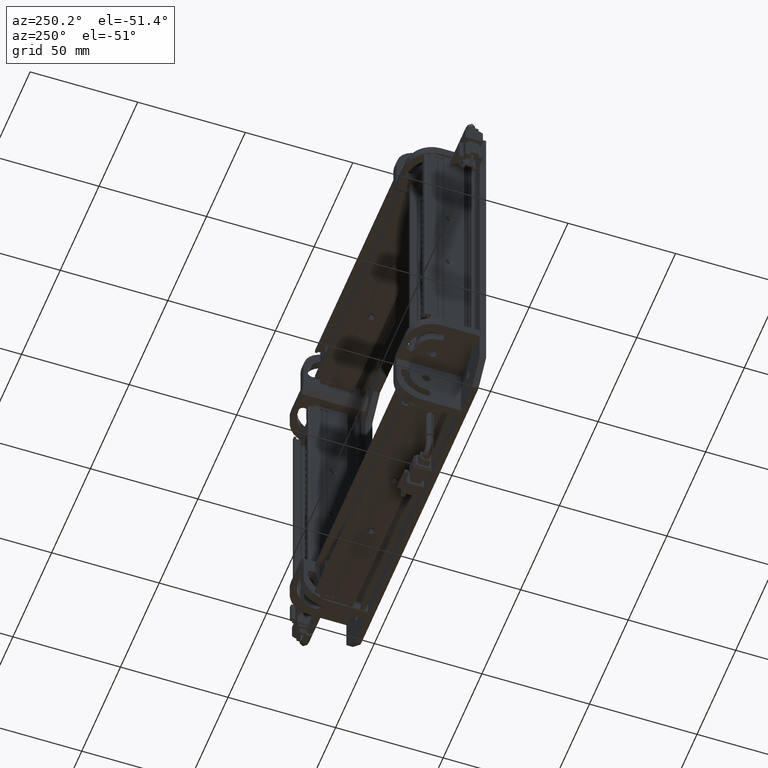
[diagram: clean part render]
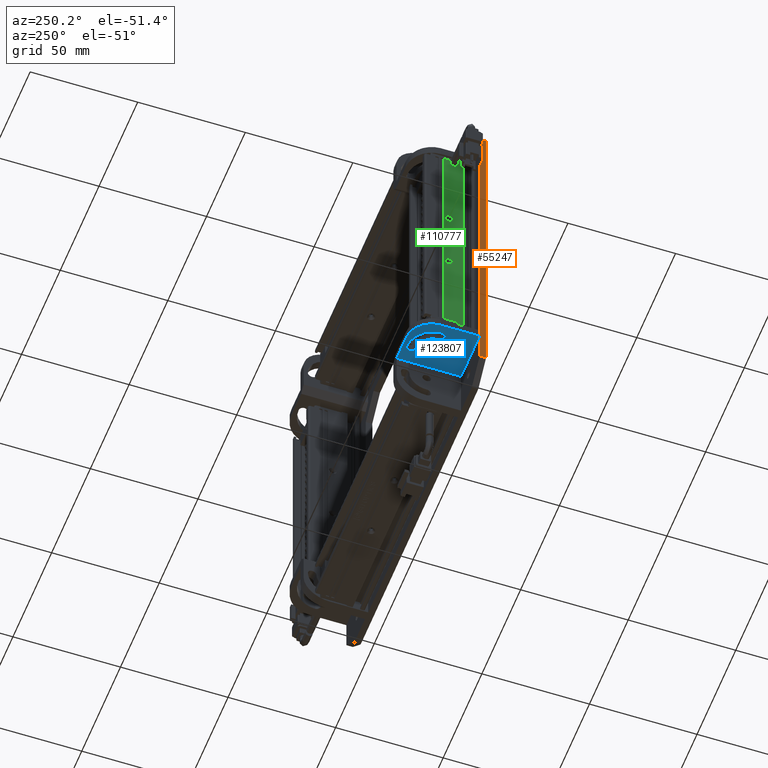
[diagram: same view with three faces highlighted in distinct colors, each labeled with its STEP entity id]
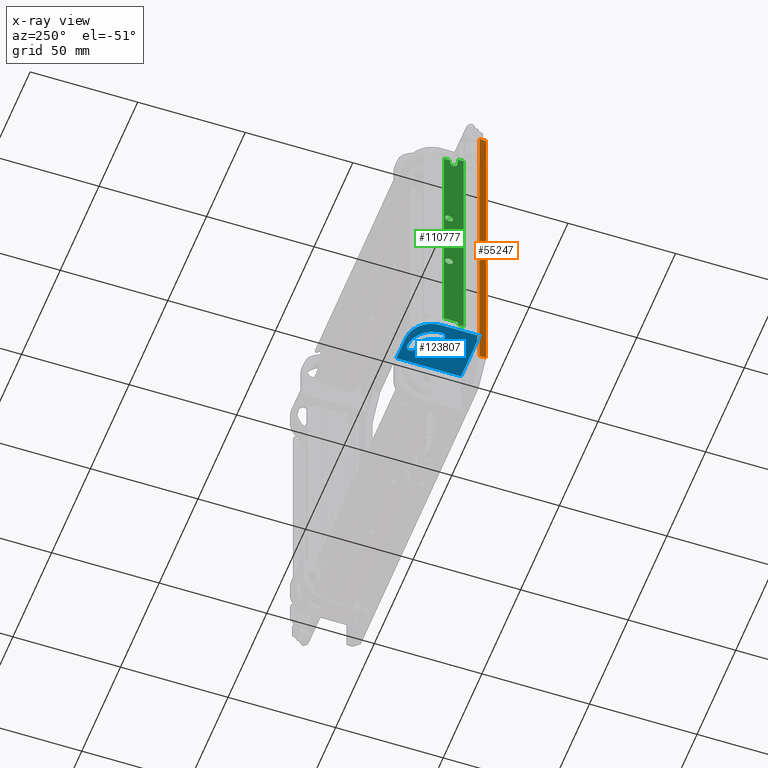
[diagram: x-ray of the same camera — body ghosted, the three highlighted faces saturated]
A machine part, auxiliary view with three faces highlighted in distinct colors.
The next image is the same camera in x-ray (body ghosted, the three faces saturated) — at least one of them is partly hidden behind the body in this view.
Their STEP definitions:

[orange] entity #55247 — the highlighted planar face has unit normal (1, -0, 0).
#13870 = DIRECTION ( 'NONE',  ( 7.885175750095784300E-018, -4.377151835486122500E-034, -1.000000000000000000 ) ) ;
#15444 = VECTOR ( 'NONE', #63214, 1000.000000000000000 ) ;
#19792 = ORIENTED_EDGE ( 'NONE', *, *, #22503, .T. ) ;
#22503 = EDGE_CURVE ( 'NONE', #28278, #85719, #25819, .T. ) ;
#25340 = AXIS2_PLACEMENT_3D ( 'NONE', #108759, #46033, #119266 ) ;
#25819 = LINE ( 'NONE', #133526, #78243 ) ;
#27652 = CARTESIAN_POINT ( 'NONE',  ( -86.00000000000000000, 4.773959005888153400E-015, -75.99999999999992900 ) ) ;
#28232 = ORIENTED_EDGE ( 'NONE', *, *, #36640, .F. ) ;
#28278 = VERTEX_POINT ( 'NONE', #27652 ) ;
#29137 = DIRECTION ( 'NONE',  ( -5.551115123125761100E-017, -1.000000000000000000, 0.0000000000000000000 ) ) ;
#36640 = EDGE_CURVE ( 'NONE', #28278, #112288, #78579, .T. ) ;
#41939 = FACE_OUTER_BOUND ( 'NONE', #43766, .T. ) ;
#42476 = CARTESIAN_POINT ( 'NONE',  ( -86.00000000000000000, -2.999999999999995100, -75.99999999999994300 ) ) ;
#43766 = EDGE_LOOP ( 'NONE', ( #51791, #28232, #19792, #109355 ) ) ;
#46033 = DIRECTION ( 'NONE',  ( 1.000000000000000000, -5.551115123125761100E-017, 7.885175750095784300E-018 ) ) ;
#51791 = ORIENTED_EDGE ( 'NONE', *, *, #87847, .F. ) ;
#55247 = ADVANCED_FACE ( 'NONE', ( #41939 ), #118796, .F. ) ;
#60343 = CARTESIAN_POINT ( 'NONE',  ( -86.00000000000000000, 4.773959005888153400E-015, 75.99999999999997200 ) ) ;
#63214 = DIRECTION ( 'NONE',  ( -5.551115123125761100E-017, -1.000000000000000000, 0.0000000000000000000 ) ) ;
#66030 = EDGE_CURVE ( 'NONE', #115490, #85719, #80184, .T. ) ;
#74393 = LINE ( 'NONE', #94414, #15444 ) ;
#77080 = CARTESIAN_POINT ( 'NONE',  ( -86.00000000000001400, -2.999999999999995100, 75.99999999999998600 ) ) ;
#78243 = VECTOR ( 'NONE', #29137, 1000.000000000000000 ) ;
#78579 = LINE ( 'NONE', #113742, #130965 ) ;
#80184 = LINE ( 'NONE', #87082, #108006 ) ;
#82711 = DIRECTION ( 'NONE',  ( -7.885175750095784300E-018, 4.377151835486122500E-034, 1.000000000000000000 ) ) ;
#85719 = VERTEX_POINT ( 'NONE', #42476 ) ;
#87082 = CARTESIAN_POINT ( 'NONE',  ( -86.00000000000001400, -2.999999999999995100, 86.00000000000000000 ) ) ;
#87847 = EDGE_CURVE ( 'NONE', #112288, #115490, #74393, .T. ) ;
#94414 = CARTESIAN_POINT ( 'NONE',  ( -86.00000000000000000, -2.999999999999995100, 75.99999999999997200 ) ) ;
#108006 = VECTOR ( 'NONE', #13870, 1000.000000000000000 ) ;
#108759 = CARTESIAN_POINT ( 'NONE',  ( -86.00000000000000000, -2.999999999999995100, 86.00000000000000000 ) ) ;
#109355 = ORIENTED_EDGE ( 'NONE', *, *, #66030, .F. ) ;
#112288 = VERTEX_POINT ( 'NONE', #60343 ) ;
#113742 = CARTESIAN_POINT ( 'NONE',  ( -86.00000000000000000, 4.773959005888154200E-015, 86.00000000000000000 ) ) ;
#115490 = VERTEX_POINT ( 'NONE', #77080 ) ;
#118796 = PLANE ( 'NONE',  #25340 ) ;
#119266 = DIRECTION ( 'NONE',  ( -5.551115123125761100E-017, -1.000000000000000000, 0.0000000000000000000 ) ) ;
#130965 = VECTOR ( 'NONE', #82711, 1000.000000000000000 ) ;
#133526 = CARTESIAN_POINT ( 'NONE',  ( -86.00000000000000000, -2.999999999999995100, -75.99999999999991500 ) ) ;

[blue] entity #123807 — the highlighted planar face has unit normal (-0, 0, 1).
#223 = DIRECTION ( 'NONE',  ( -1.000000000000000000, -5.782411586589358600E-016, -1.734723475976807700E-015 ) ) ;
#1881 = DIRECTION ( 'NONE',  ( -1.988763751824157700E-015, 4.614045744573081000E-031, 1.000000000000000000 ) ) ;
#3083 = CIRCLE ( 'NONE', #64700, 12.00000000000001100 ) ;
#3560 = ORIENTED_EDGE ( 'NONE', *, *, #121077, .T. ) ;
#3734 = DIRECTION ( 'NONE',  ( 0.0000000000000000000, 1.000000000000000000, 0.0000000000000000000 ) ) ;
#4608 = VERTEX_POINT ( 'NONE', #5207 ) ;
#5207 = CARTESIAN_POINT ( 'NONE',  ( -69.99999999999968700, 18.00000000000003900, -61.99999999999995700 ) ) ;
#5238 = DIRECTION ( 'NONE',  ( 0.0000000000000000000, 1.000000000000000000, 0.0000000000000000000 ) ) ;
#6328 = CARTESIAN_POINT ( 'NONE',  ( -69.99999999999968700, 16.00000000000003200, -61.99999999999995700 ) ) ;
#7699 = CARTESIAN_POINT ( 'NONE',  ( -69.99999999999968700, 16.00000000000003200, -61.99999999999995700 ) ) ;
#9245 = DIRECTION ( 'NONE',  ( 0.0000000000000000000, 1.000000000000000000, 0.0000000000000000000 ) ) ;
#10146 = ORIENTED_EDGE ( 'NONE', *, *, #107440, .T. ) ;
#10955 = VERTEX_POINT ( 'NONE', #47929 ) ;
#14071 = CARTESIAN_POINT ( 'NONE',  ( -73.99999999999970200, 30.00000000000002800, -61.99999999999996400 ) ) ;
#16860 = DIRECTION ( 'NONE',  ( 0.0000000000000000000, 1.000000000000000000, 0.0000000000000000000 ) ) ;
#18259 = DIRECTION ( 'NONE',  ( 0.0000000000000000000, 1.000000000000000000, 0.0000000000000000000 ) ) ;
#19120 = AXIS2_PLACEMENT_3D ( 'NONE', #130679, #67996, #5238 ) ;
#19460 = EDGE_CURVE ( 'NONE', #66187, #38149, #82183, .T. ) ;
#21419 = EDGE_CURVE ( 'NONE', #88585, #38149, #66143, .T. ) ;
#22024 = AXIS2_PLACEMENT_3D ( 'NONE', #22261, #95539, #32746 ) ;
#22172 = VERTEX_POINT ( 'NONE', #65809 ) ;
#22261 = CARTESIAN_POINT ( 'NONE',  ( -85.99999999999971600, 3.481205157530256500E-014, -61.99999999999998600 ) ) ;
#23805 = AXIS2_PLACEMENT_3D ( 'NONE', #125592, #62922, #223 ) ;
#24061 = FACE_OUTER_BOUND ( 'NONE', #36677, .T. ) ;
#24221 = EDGE_LOOP ( 'NONE', ( #3560, #57849 ) ) ;
#24368 = AXIS2_PLACEMENT_3D ( 'NONE', #6328, #79631, #16860 ) ;
#26505 = VECTOR ( 'NONE', #76782, 1000.000000000000000 ) ;
#29337 = DIRECTION ( 'NONE',  ( 1.000000000000000000, -2.320057241761838600E-016, 1.988763751824157700E-015 ) ) ;
#29677 = CARTESIAN_POINT ( 'NONE',  ( -61.99999999999968700, 2.924391419507414300E-014, -61.99999999999994300 ) ) ;
#32295 = PLANE ( 'NONE',  #22024 ) ;
#32746 = DIRECTION ( 'NONE',  ( 1.000000000000000000, -2.320057241761838600E-016, 1.844203462159423900E-015 ) ) ;
#33021 = ORIENTED_EDGE ( 'NONE', *, *, #21419, .F. ) ;
#33411 = CIRCLE ( 'NONE', #117870, 1.999999999999998200 ) ;
#35416 = VECTOR ( 'NONE', #82335, 1000.000000000000000 ) ;
#36677 = EDGE_LOOP ( 'NONE', ( #33021, #132903, #71425, #37527, #73241 ) ) ;
#37527 = ORIENTED_EDGE ( 'NONE', *, *, #118880, .F. ) ;
#38149 = VERTEX_POINT ( 'NONE', #124492 ) ;
#38481 = CARTESIAN_POINT ( 'NONE',  ( -61.99999999999968700, 2.924391419507414300E-014, -61.99999999999994300 ) ) ;
#40112 = EDGE_CURVE ( 'NONE', #48983, #119212, #3083, .T. ) ;
#40737 = CIRCLE ( 'NONE', #126158, 2.000000000000001800 ) ;
#42723 = CARTESIAN_POINT ( 'NONE',  ( -69.99999999999968700, 28.00000000000004300, -61.99999999999995700 ) ) ;
#47929 = CARTESIAN_POINT ( 'NONE',  ( -69.99999999999968700, 24.00000000000004600, -61.99999999999995700 ) ) ;
#48983 = VERTEX_POINT ( 'NONE', #42723 ) ;
#55248 = CIRCLE ( 'NONE', #24368, 2.000000000000008900 ) ;
#56113 = EDGE_CURVE ( 'NONE', #88585, #22172, #122938, .T. ) ;
#56221 = LINE ( 'NONE', #75066, #108648 ) ;
#57849 = ORIENTED_EDGE ( 'NONE', *, *, #83951, .T. ) ;
#61160 = CIRCLE ( 'NONE', #118300, 2.000000000000008900 ) ;
#62922 = DIRECTION ( 'NONE',  ( -1.875629612086540000E-015, 4.351568064384324800E-031, 1.000000000000000000 ) ) ;
#63298 = LINE ( 'NONE', #29677, #35416 ) ;
#64639 = CARTESIAN_POINT ( 'NONE',  ( -79.99999999999970200, 16.00000000000003200, -61.99999999999997900 ) ) ;
#64700 = AXIS2_PLACEMENT_3D ( 'NONE', #134714, #72005, #9245 ) ;
#65809 = CARTESIAN_POINT ( 'NONE',  ( -61.99999999999968000, 30.00000000000002800, -61.99999999999994300 ) ) ;
#66127 = EDGE_LOOP ( 'NONE', ( #111421, #86448, #110833, #10146 ) ) ;
#66143 = CIRCLE ( 'NONE', #23805, 11.99999999999999600 ) ;
#66187 = VERTEX_POINT ( 'NONE', #132362 ) ;
#66475 = DIRECTION ( 'NONE',  ( -1.988763751824157700E-015, 4.614045744573081000E-031, 1.000000000000000000 ) ) ;
#67024 = VERTEX_POINT ( 'NONE', #38481 ) ;
#67996 = DIRECTION ( 'NONE',  ( -1.988763751824157700E-015, 4.614045744573081000E-031, 1.000000000000000000 ) ) ;
#71425 = ORIENTED_EDGE ( 'NONE', *, *, #85635, .T. ) ;
#72005 = DIRECTION ( 'NONE',  ( -1.988763751824157700E-015, 4.614045744573081000E-031, 1.000000000000000000 ) ) ;
#73241 = ORIENTED_EDGE ( 'NONE', *, *, #19460, .T. ) ;
#75066 = CARTESIAN_POINT ( 'NONE',  ( -85.99999999999971600, 3.481205157530256500E-014, -61.99999999999998600 ) ) ;
#75195 = DIRECTION ( 'NONE',  ( 0.0000000000000000000, 1.000000000000000000, 0.0000000000000000000 ) ) ;
#76782 = DIRECTION ( 'NONE',  ( 2.320057241761838600E-016, 1.000000000000000000, -0.0000000000000000000 ) ) ;
#77947 = EDGE_CURVE ( 'NONE', #10955, #104651, #129194, .T. ) ;
#78059 = CARTESIAN_POINT ( 'NONE',  ( -77.99999999999970200, 16.00000000000003200, -61.99999999999997200 ) ) ;
#78390 = EDGE_CURVE ( 'NONE', #119212, #104651, #40737, .T. ) ;
#79631 = DIRECTION ( 'NONE',  ( -1.988763751824157700E-015, 4.614045744573081000E-031, 1.000000000000000000 ) ) ;
#79939 = CARTESIAN_POINT ( 'NONE',  ( -69.99999999999970200, 14.00000000000002300, -61.99999999999995700 ) ) ;
#81024 = DIRECTION ( 'NONE',  ( -1.988763751824157700E-015, 4.614045744573081000E-031, 1.000000000000000000 ) ) ;
#82183 = LINE ( 'NONE', #107938, #26505 ) ;
#82335 = DIRECTION ( 'NONE',  ( -2.320057241761838600E-016, -1.000000000000000000, -0.0000000000000000000 ) ) ;
#83951 = EDGE_CURVE ( 'NONE', #127547, #4608, #61160, .T. ) ;
#85580 = DIRECTION ( 'NONE',  ( 1.000000000000000000, -2.320057241761838600E-016, 1.988763751824157700E-015 ) ) ;
#85635 = EDGE_CURVE ( 'NONE', #22172, #67024, #63298, .T. ) ;
#86448 = ORIENTED_EDGE ( 'NONE', *, *, #78390, .T. ) ;
#88585 = VERTEX_POINT ( 'NONE', #14071 ) ;
#91889 = VECTOR ( 'NONE', #29337, 1000.000000000000000 ) ;
#95539 = DIRECTION ( 'NONE',  ( -1.844203462159423900E-015, 4.278657597665226700E-031, 1.000000000000000000 ) ) ;
#102583 = CARTESIAN_POINT ( 'NONE',  ( -85.99999999999971600, 30.00000000000003200, -61.99999999999999300 ) ) ;
#104651 = VERTEX_POINT ( 'NONE', #78059 ) ;
#107440 = EDGE_CURVE ( 'NONE', #10955, #48983, #33411, .T. ) ;
#107600 = FACE_BOUND ( 'NONE', #66127, .T. ) ;
#107938 = CARTESIAN_POINT ( 'NONE',  ( -85.99999999999971600, 30.00000000000003200, -61.99999999999998600 ) ) ;
#108648 = VECTOR ( 'NONE', #85580, 1000.000000000000000 ) ;
#110833 = ORIENTED_EDGE ( 'NONE', *, *, #77947, .F. ) ;
#111421 = ORIENTED_EDGE ( 'NONE', *, *, #40112, .T. ) ;
#117103 = CARTESIAN_POINT ( 'NONE',  ( -81.99999999999970200, 16.00000000000003200, -61.99999999999998600 ) ) ;
#117870 = AXIS2_PLACEMENT_3D ( 'NONE', #129150, #66475, #3734 ) ;
#118300 = AXIS2_PLACEMENT_3D ( 'NONE', #7699, #81024, #18259 ) ;
#118880 = EDGE_CURVE ( 'NONE', #66187, #67024, #56221, .T. ) ;
#119212 = VERTEX_POINT ( 'NONE', #117103 ) ;
#121077 = EDGE_CURVE ( 'NONE', #4608, #127547, #55248, .T. ) ;
#122938 = LINE ( 'NONE', #102583, #91889 ) ;
#123807 = ADVANCED_FACE ( 'NONE', ( #24061, #107600, #132173 ), #32295, .F. ) ;
#124492 = CARTESIAN_POINT ( 'NONE',  ( -85.99999999999971600, 18.00000000000003600, -61.99999999999998600 ) ) ;
#125592 = CARTESIAN_POINT ( 'NONE',  ( -73.99999999999970200, 18.00000000000003200, -61.99999999999996400 ) ) ;
#126158 = AXIS2_PLACEMENT_3D ( 'NONE', #64639, #1881, #75195 ) ;
#127547 = VERTEX_POINT ( 'NONE', #79939 ) ;
#129150 = CARTESIAN_POINT ( 'NONE',  ( -69.99999999999968700, 26.00000000000004300, -61.99999999999995700 ) ) ;
#129194 = CIRCLE ( 'NONE', #19120, 8.000000000000010700 ) ;
#130679 = CARTESIAN_POINT ( 'NONE',  ( -69.99999999999968700, 16.00000000000003200, -61.99999999999995700 ) ) ;
#132173 = FACE_BOUND ( 'NONE', #24221, .T. ) ;
#132362 = CARTESIAN_POINT ( 'NONE',  ( -85.99999999999971600, 3.481205157530256500E-014, -61.99999999999998600 ) ) ;
#132903 = ORIENTED_EDGE ( 'NONE', *, *, #56113, .T. ) ;
#134714 = CARTESIAN_POINT ( 'NONE',  ( -69.99999999999968700, 16.00000000000003200, -61.99999999999995700 ) ) ;

[green] entity #110777 — the highlighted planar face has unit normal (1, -0, 0).
#4728 = EDGE_LOOP ( 'NONE', ( #24128, #34947, #107761, #56179, #84176, #100366, #107772, #35092, #116736, #6742, #55606, #131132 ) ) ;
#6335 = DIRECTION ( 'NONE',  ( -1.000000000000000000, 1.110223024625152700E-016, -4.348783540041898500E-016 ) ) ;
#6742 = ORIENTED_EDGE ( 'NONE', *, *, #55680, .F. ) ;
#9620 = VECTOR ( 'NONE', #110884, 1000.000000000000000 ) ;
#10532 = DIRECTION ( 'NONE',  ( 4.348783540041898000E-016, -6.435991132435456900E-016, -1.000000000000000000 ) ) ;
#11592 = DIRECTION ( 'NONE',  ( -1.110223024625155600E-016, -1.000000000000000000, 6.435991132435456900E-016 ) ) ;
#14642 = EDGE_LOOP ( 'NONE', ( #71845, #53382 ) ) ;
#16376 = FACE_BOUND ( 'NONE', #122217, .T. ) ;
#17643 = CARTESIAN_POINT ( 'NONE',  ( -85.49999999999970200, -2.506934854693899000, -58.00000000000000700 ) ) ;
#18225 = CARTESIAN_POINT ( 'NONE',  ( -85.49999999999975800, 16.40000000000010500, 55.99999999999999300 ) ) ;
#19650 = FACE_BOUND ( 'NONE', #14642, .T. ) ;
#21491 = DIRECTION ( 'NONE',  ( -1.110223024625155600E-016, -1.000000000000000000, 6.435991132435456900E-016 ) ) ;
#23000 = DIRECTION ( 'NONE',  ( 4.348783540041898000E-016, -6.435991132435456900E-016, -1.000000000000000000 ) ) ;
#23148 = CARTESIAN_POINT ( 'NONE',  ( -85.49999999999974400, 11.90000000000010700, 54.44999999999998200 ) ) ;
#24128 = ORIENTED_EDGE ( 'NONE', *, *, #36189, .T. ) ;
#24990 = VECTOR ( 'NONE', #21491, 1000.000000000000000 ) ;
#25825 = VERTEX_POINT ( 'NONE', #114359 ) ;
#26119 = DIRECTION ( 'NONE',  ( -1.110223024625155600E-016, -1.000000000000000000, 6.435991132435456900E-016 ) ) ;
#26457 = EDGE_CURVE ( 'NONE', #101223, #25825, #79764, .T. ) ;
#27333 = VERTEX_POINT ( 'NONE', #18225 ) ;
#27424 = CIRCLE ( 'NONE', #88085, 1.800000000059753800 ) ;
#28192 = DIRECTION ( 'NONE',  ( 4.348783540041898000E-016, -6.435991132435456900E-016, -1.000000000000000000 ) ) ;
#29884 = VERTEX_POINT ( 'NONE', #34605 ) ;
#31214 = DIRECTION ( 'NONE',  ( -1.000000000000000000, 1.110223024625152700E-016, -4.348783540041898500E-016 ) ) ;
#31771 = VECTOR ( 'NONE', #36871, 1000.000000000000000 ) ;
#33590 = DIRECTION ( 'NONE',  ( 0.0000000000000000000, 1.000000000000000000, 0.0000000000000000000 ) ) ;
#34397 = EDGE_CURVE ( 'NONE', #42982, #113856, #123136, .T. ) ;
#34605 = CARTESIAN_POINT ( 'NONE',  ( -85.49999999999975800, 9.900000000000106900, 57.99999999999998600 ) ) ;
#34947 = ORIENTED_EDGE ( 'NONE', *, *, #26457, .F. ) ;
#35092 = ORIENTED_EDGE ( 'NONE', *, *, #125659, .F. ) ;
#35399 = DIRECTION ( 'NONE',  ( 1.110223024625155600E-016, 1.000000000000000000, -6.435991132435456900E-016 ) ) ;
#35534 = CARTESIAN_POINT ( 'NONE',  ( -85.49999999990831200, 14.10000000000005800, -16.80000000005976800 ) ) ;
#36189 = EDGE_CURVE ( 'NONE', #44859, #25825, #123044, .T. ) ;
#36871 = DIRECTION ( 'NONE',  ( -4.348783540041898000E-016, 6.435991132435456900E-016, 1.000000000000000000 ) ) ;
#39286 = VERTEX_POINT ( 'NONE', #63974 ) ;
#42887 = CARTESIAN_POINT ( 'NONE',  ( -85.49999999990831200, 14.10000000000006000, -15.00000000000001400 ) ) ;
#42982 = VERTEX_POINT ( 'NONE', #90502 ) ;
#44859 = VERTEX_POINT ( 'NONE', #49107 ) ;
#47123 = CARTESIAN_POINT ( 'NONE',  ( -85.49999999999975800, -2.506934854693825700, 56.00000000000000700 ) ) ;
#47299 = EDGE_CURVE ( 'NONE', #113856, #42982, #49879, .T. ) ;
#48467 = CARTESIAN_POINT ( 'NONE',  ( -85.49999999999970200, 16.40000000000003800, -56.00000000000002800 ) ) ;
#48520 = CARTESIAN_POINT ( 'NONE',  ( -85.49999999997881200, 14.10000000000008100, 14.99999999999998400 ) ) ;
#49107 = CARTESIAN_POINT ( 'NONE',  ( -85.49999999999974400, 10.25000000000010700, 56.00000000000000000 ) ) ;
#49879 = CIRCLE ( 'NONE', #127405, 1.799999999989270200 ) ;
#51853 = VECTOR ( 'NONE', #35399, 1000.000000000000000 ) ;
#52544 = VERTEX_POINT ( 'NONE', #107650 ) ;
#53382 = ORIENTED_EDGE ( 'NONE', *, *, #70178, .F. ) ;
#53400 = DIRECTION ( 'NONE',  ( 0.0000000000000000000, 9.637352643995668300E-016, 1.000000000000000000 ) ) ;
#53485 = DIRECTION ( 'NONE',  ( 4.348783540041899400E-016, 4.755773228705164500E-016, -1.000000000000000000 ) ) ;
#54228 = VECTOR ( 'NONE', #23000, 1000.000000000000000 ) ;
#54710 = AXIS2_PLACEMENT_3D ( 'NONE', #48520, #121789, #59034 ) ;
#55606 = ORIENTED_EDGE ( 'NONE', *, *, #132360, .T. ) ;
#55631 = CARTESIAN_POINT ( 'NONE',  ( -85.49999999999970200, -2.506934854693897700, -56.00000000000001400 ) ) ;
#55680 = EDGE_CURVE ( 'NONE', #29884, #55786, #64215, .T. ) ;
#55786 = VERTEX_POINT ( 'NONE', #55963 ) ;
#55963 = CARTESIAN_POINT ( 'NONE',  ( -85.49999999999975800, 7.200000000000111200, 57.99999999999998600 ) ) ;
#56095 = LINE ( 'NONE', #94818, #24990 ) ;
#56179 = ORIENTED_EDGE ( 'NONE', *, *, #110079, .F. ) ;
#59034 = DIRECTION ( 'NONE',  ( 0.0000000000000000000, 9.637352644373043500E-016, 1.000000000000000000 ) ) ;
#63974 = CARTESIAN_POINT ( 'NONE',  ( -85.49999999999970200, 9.900000000000032300, -56.00000000000002800 ) ) ;
#64215 = LINE ( 'NONE', #74303, #119920 ) ;
#64800 = VERTEX_POINT ( 'NONE', #106637 ) ;
#69078 = CARTESIAN_POINT ( 'NONE',  ( -85.49999999990831200, 14.10000000000006000, -15.00000000000001400 ) ) ;
#70178 = EDGE_CURVE ( 'NONE', #74411, #52544, #73162, .T. ) ;
#71845 = ORIENTED_EDGE ( 'NONE', *, *, #90719, .F. ) ;
#73162 = CIRCLE ( 'NONE', #93992, 1.800000000059753800 ) ;
#73403 = CARTESIAN_POINT ( 'NONE',  ( -85.49999999999974400, 13.55000000000010700, 54.44999999999998200 ) ) ;
#74303 = CARTESIAN_POINT ( 'NONE',  ( -85.49999999999975800, -2.506934854693824400, 57.99999999999999300 ) ) ;
#74411 = VERTEX_POINT ( 'NONE', #35534 ) ;
#75765 = VECTOR ( 'NONE', #26119, 1000.000000000000000 ) ;
#78126 = DIRECTION ( 'NONE',  ( 4.348783540041898000E-016, -6.435991132435456900E-016, -1.000000000000000000 ) ) ;
#79641 = DIRECTION ( 'NONE',  ( 0.0000000000000000000, 9.637352643995668300E-016, 1.000000000000000000 ) ) ;
#79764 = CIRCLE ( 'NONE', #92672, 1.650000000000000400 ) ;
#80704 = LINE ( 'NONE', #109675, #133103 ) ;
#82216 = EDGE_CURVE ( 'NONE', #39286, #103422, #134518, .T. ) ;
#84176 = ORIENTED_EDGE ( 'NONE', *, *, #101664, .F. ) ;
#85543 = VERTEX_POINT ( 'NONE', #48467 ) ;
#86157 = CARTESIAN_POINT ( 'NONE',  ( -85.49999999999970200, 9.900000000000032300, -58.00000000000001400 ) ) ;
#87231 = VECTOR ( 'NONE', #10532, 1000.000000000000000 ) ;
#88085 = AXIS2_PLACEMENT_3D ( 'NONE', #69078, #6335, #79641 ) ;
#89939 = LINE ( 'NONE', #130608, #9620 ) ;
#90502 = CARTESIAN_POINT ( 'NONE',  ( -85.49999999997881200, 14.10000000000008300, 16.79999999998925400 ) ) ;
#90719 = EDGE_CURVE ( 'NONE', #52544, #74411, #27424, .T. ) ;
#90933 = DIRECTION ( 'NONE',  ( 1.000000000000000000, -1.110223024625152700E-016, 4.348783540041898500E-016 ) ) ;
#92672 = AXIS2_PLACEMENT_3D ( 'NONE', #23148, #96417, #33590 ) ;
#93539 = DIRECTION ( 'NONE',  ( 1.110223024625155600E-016, 1.000000000000000000, -6.435991132435456900E-016 ) ) ;
#93992 = AXIS2_PLACEMENT_3D ( 'NONE', #42887, #116057, #53400 ) ;
#94009 = CARTESIAN_POINT ( 'NONE',  ( -85.49999999997881200, 14.10000000000008100, 14.99999999999998400 ) ) ;
#94818 = CARTESIAN_POINT ( 'NONE',  ( -85.49999999999975800, -2.506934854693825700, 56.00000000000000700 ) ) ;
#95021 = ORIENTED_EDGE ( 'NONE', *, *, #47299, .F. ) ;
#95215 = CARTESIAN_POINT ( 'NONE',  ( -85.49999999999974400, 10.25000000000010700, 55.99999999999999300 ) ) ;
#95266 = VECTOR ( 'NONE', #53485, 1000.000000000000000 ) ;
#96417 = DIRECTION ( 'NONE',  ( -1.000000000000000000, 6.797840978647469200E-016, -4.348783540041901900E-016 ) ) ;
#96674 = FACE_OUTER_BOUND ( 'NONE', #4728, .T. ) ;
#99651 = CARTESIAN_POINT ( 'NONE',  ( -85.49999999999970200, 16.40000000000003400, -58.00000000000001400 ) ) ;
#100366 = ORIENTED_EDGE ( 'NONE', *, *, #117947, .F. ) ;
#100999 = PLANE ( 'NONE',  #112747 ) ;
#101223 = VERTEX_POINT ( 'NONE', #73403 ) ;
#101664 = EDGE_CURVE ( 'NONE', #85543, #27333, #112009, .T. ) ;
#103422 = VERTEX_POINT ( 'NONE', #104159 ) ;
#104023 = CARTESIAN_POINT ( 'NONE',  ( -85.49999999999970200, -2.506934854693899000, -58.00000000000000700 ) ) ;
#104159 = CARTESIAN_POINT ( 'NONE',  ( -85.49999999999970200, 9.900000000000030600, -58.00000000000002800 ) ) ;
#104398 = CARTESIAN_POINT ( 'NONE',  ( -85.49999999999970200, 7.200000000000034800, -58.00000000000001400 ) ) ;
#104415 = VECTOR ( 'NONE', #93539, 1000.000000000000000 ) ;
#104512 = DIRECTION ( 'NONE',  ( 0.0000000000000000000, 9.637352644373043500E-016, 1.000000000000000000 ) ) ;
#106637 = CARTESIAN_POINT ( 'NONE',  ( -85.49999999999975800, 9.900000000000105200, 56.00000000000000000 ) ) ;
#107586 = LINE ( 'NONE', #55631, #51853 ) ;
#107650 = CARTESIAN_POINT ( 'NONE',  ( -85.49999999990831200, 14.10000000000006200, -13.19999999994026000 ) ) ;
#107700 = LINE ( 'NONE', #104023, #104415 ) ;
#107761 = ORIENTED_EDGE ( 'NONE', *, *, #115588, .T. ) ;
#107772 = ORIENTED_EDGE ( 'NONE', *, *, #82216, .T. ) ;
#109675 = CARTESIAN_POINT ( 'NONE',  ( -85.49999999999970200, 9.900000000000032300, -58.00000000000001400 ) ) ;
#110079 = EDGE_CURVE ( 'NONE', #27333, #111747, #134720, .T. ) ;
#110777 = ADVANCED_FACE ( 'NONE', ( #16376, #96674, #19650 ), #100999, .F. ) ;
#110884 = DIRECTION ( 'NONE',  ( -4.348783540041895500E-016, 2.881951985471670100E-015, 1.000000000000000000 ) ) ;
#111747 = VERTEX_POINT ( 'NONE', #132875 ) ;
#112009 = LINE ( 'NONE', #99651, #31771 ) ;
#112747 = AXIS2_PLACEMENT_3D ( 'NONE', #17643, #90933, #28192 ) ;
#113856 = VERTEX_POINT ( 'NONE', #117297 ) ;
#114109 = CARTESIAN_POINT ( 'NONE',  ( -85.49999999999970200, 7.200000000000034800, -58.00000000000001400 ) ) ;
#114359 = CARTESIAN_POINT ( 'NONE',  ( -85.49999999999974400, 10.25000000000010700, 54.44999999999998200 ) ) ;
#114980 = LINE ( 'NONE', #104398, #87231 ) ;
#115588 = EDGE_CURVE ( 'NONE', #101223, #111747, #89939, .T. ) ;
#116057 = DIRECTION ( 'NONE',  ( -1.000000000000000000, 1.110223024625152700E-016, -4.348783540041898500E-016 ) ) ;
#116736 = ORIENTED_EDGE ( 'NONE', *, *, #119055, .F. ) ;
#117297 = CARTESIAN_POINT ( 'NONE',  ( -85.49999999997881200, 14.10000000000008000, 13.20000000001071800 ) ) ;
#117947 = EDGE_CURVE ( 'NONE', #39286, #85543, #107586, .T. ) ;
#119055 = EDGE_CURVE ( 'NONE', #55786, #130409, #114980, .T. ) ;
#119099 = EDGE_CURVE ( 'NONE', #44859, #64800, #56095, .T. ) ;
#119920 = VECTOR ( 'NONE', #11592, 1000.000000000000000 ) ;
#121789 = DIRECTION ( 'NONE',  ( -1.000000000000000000, 1.110223024625152700E-016, -4.348783540041898500E-016 ) ) ;
#122217 = EDGE_LOOP ( 'NONE', ( #129642, #95021 ) ) ;
#123044 = LINE ( 'NONE', #95215, #95266 ) ;
#123136 = CIRCLE ( 'NONE', #54710, 1.799999999989270200 ) ;
#125659 = EDGE_CURVE ( 'NONE', #130409, #103422, #107700, .T. ) ;
#127405 = AXIS2_PLACEMENT_3D ( 'NONE', #94009, #31214, #104512 ) ;
#129642 = ORIENTED_EDGE ( 'NONE', *, *, #34397, .F. ) ;
#130409 = VERTEX_POINT ( 'NONE', #114109 ) ;
#130608 = CARTESIAN_POINT ( 'NONE',  ( -85.49999999999974400, 13.55000000000010700, 55.99999999999999300 ) ) ;
#131132 = ORIENTED_EDGE ( 'NONE', *, *, #119099, .F. ) ;
#132360 = EDGE_CURVE ( 'NONE', #29884, #64800, #80704, .T. ) ;
#132875 = CARTESIAN_POINT ( 'NONE',  ( -85.49999999999974400, 13.55000000000010700, 55.99999999999999300 ) ) ;
#133103 = VECTOR ( 'NONE', #78126, 1000.000000000000000 ) ;
#134518 = LINE ( 'NONE', #86157, #54228 ) ;
#134720 = LINE ( 'NONE', #47123, #75765 ) ;